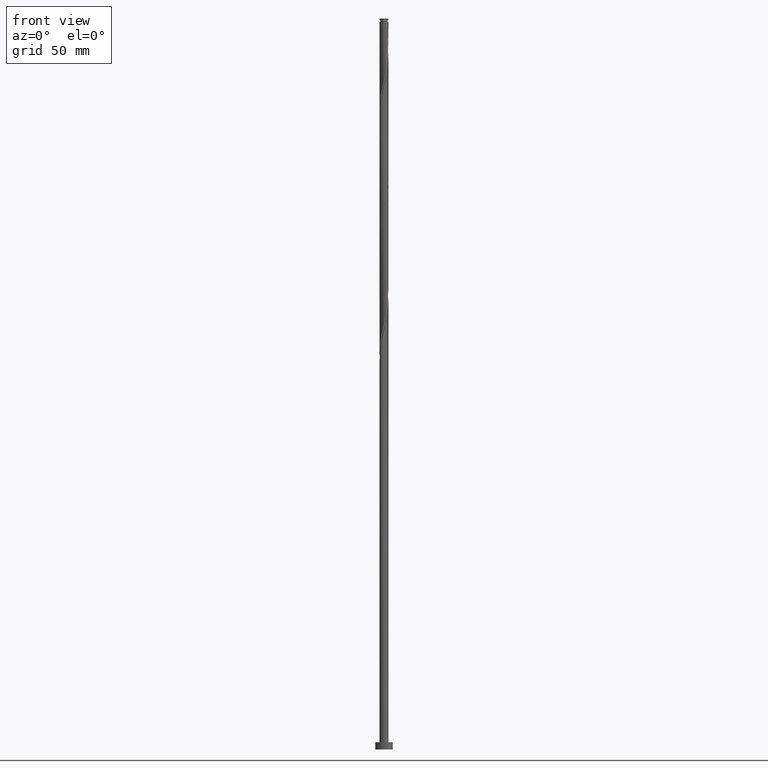
[diagram: clean part render]
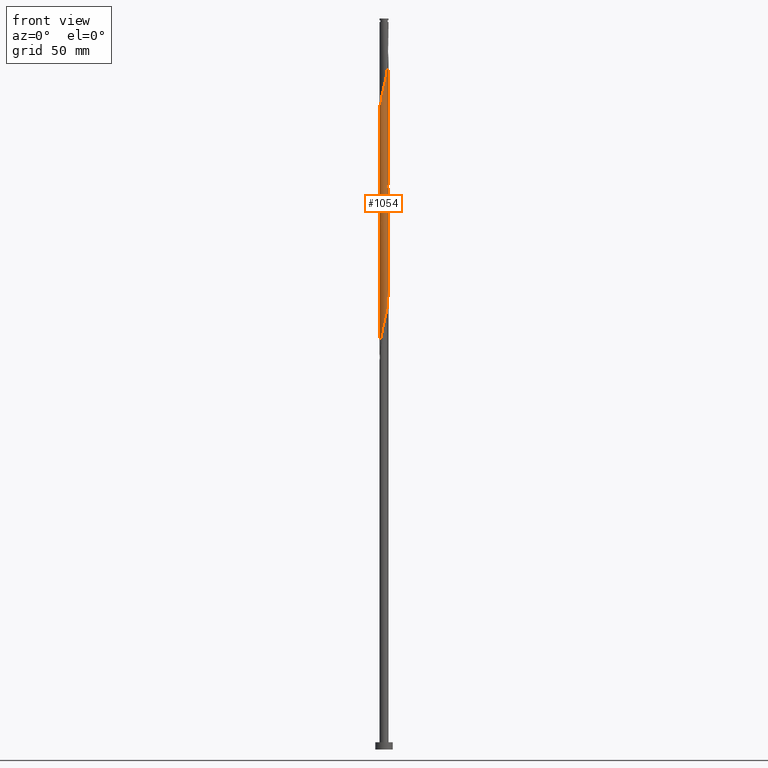
[diagram: same view with one face highlighted and labeled with its STEP entity id]
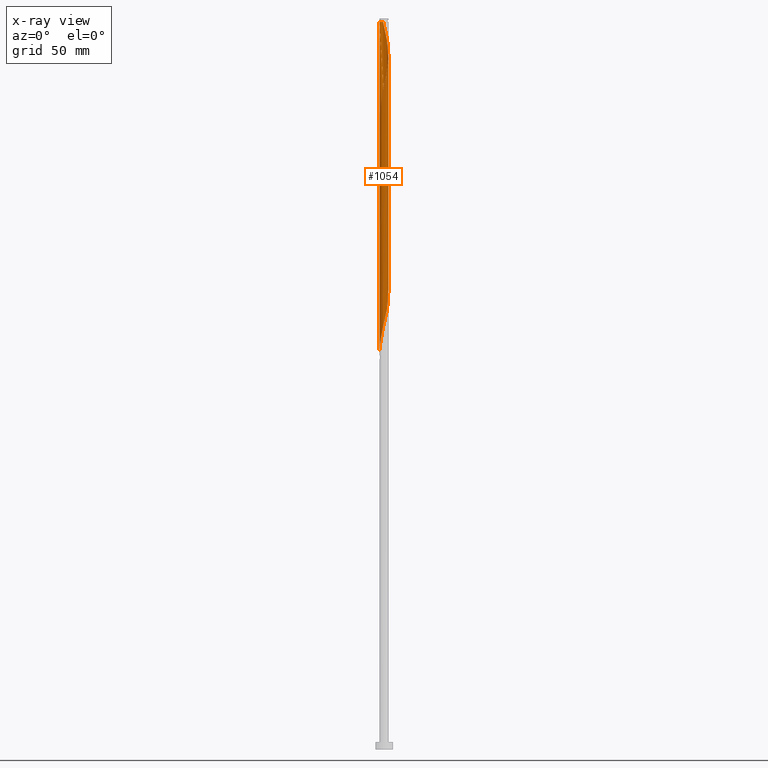
[diagram: x-ray of the same camera — body ghosted, the highlighted face saturated]
A machine part, front view. The second image highlights one B-rep face of the part: STEP entity #1054.
The next image is the same camera in x-ray: the body ghosted, the highlighted face saturated — about 0% of this face is hidden behind the body in this view.
In plain terms, the highlighted cylindrical surface (bore or boss wall) has radius 3.1 mm, axis along (-0, -0, -1).
Its self-contained STEP definition (entity closure, byte-faithful):
#4 = CARTESIAN_POINT ( 'NONE',  ( -1.174895240395842144, 2.868731631591772580, 422.0428480774244804 ) ) ;
#16 = CARTESIAN_POINT ( 'NONE',  ( -1.985715407613428907, -2.400032639001084878, 282.7199314107576811 ) ) ;
#27 = CARTESIAN_POINT ( 'NONE',  ( 1.711981735581152186, 2.584399066908315667, 487.1470147440909955 ) ) ;
#50 = CARTESIAN_POINT ( 'NONE',  ( -3.098758579582098438, -0.3176753276070431453, 433.7615980774244235 ) ) ;
#61 = CARTESIAN_POINT ( 'NONE',  ( -2.183277732758493350, -2.200749495431261415, 442.8761814107575674 ) ) ;
#71 = CARTESIAN_POINT ( 'NONE',  ( 2.741310543123280485, 1.479337302465212112, 480.6365980774243098 ) ) ;
#74 = CARTESIAN_POINT ( 'NONE',  ( 1.457440644646402550, -2.753014550567534524, 381.6782647440910523 ) ) ;
#82 = AXIS2_PLACEMENT_3D ( 'NONE', #1129, #700, #1417 ) ;
#93 = CARTESIAN_POINT ( 'NONE',  ( 0.6168922110061095809, 3.038000000000000256, 330.8970147440911092 ) ) ;
#100 = CARTESIAN_POINT ( 'NONE',  ( 3.042820448476395434, 0.5926581800109657072, 315.2720147440911092 ) ) ;
#104 = VERTEX_POINT ( 'NONE', #1364 ) ;
#108 = CARTESIAN_POINT ( 'NONE',  ( -1.457440644646403882, 2.753014550567534524, 340.0115980774244235 ) ) ;
#114 = EDGE_CURVE ( 'NONE', #104, #734, #482, .T. ) ;
#118 = CARTESIAN_POINT ( 'NONE',  ( 1.479337302465212778, 2.741310543123277377, 326.9907647440909386 ) ) ;
#124 = EDGE_LOOP ( 'NONE', ( #1191, #250, #993, #1122, #819, #1780, #1325, #1739 ) ) ;
#129 = CARTESIAN_POINT ( 'NONE',  ( 2.741310543123277377, -1.479337302465212778, 306.1574314107577379 ) ) ;
#156 = CARTESIAN_POINT ( 'NONE',  ( -2.868731631591773912, -1.174895240395841478, 276.2095147440910523 ) ) ;
#165 = CARTESIAN_POINT ( 'NONE',  ( -2.859275981770590835, 1.197723198435192815, 432.4595147440910523 ) ) ;
#202 = CARTESIAN_POINT ( 'NONE',  ( -0.3176753276070397591, 3.098758579582098882, 496.2615980774243098 ) ) ;
#211 = CARTESIAN_POINT ( 'NONE',  ( 2.415783583249093702, -1.966522826515897382, 465.0115980774243098 ) ) ;
#223 = CARTESIAN_POINT ( 'NONE',  ( -3.100000000000003642, -0.006177225460204290204, 432.4331713206115637 ) ) ;
#235 = CARTESIAN_POINT ( 'NONE',  ( -2.400032639001089318, -1.985715407613431127, 441.5740980774243098 ) ) ;
#243 = CARTESIAN_POINT ( 'NONE',  ( 2.570671591062184458, 1.732526355039322619, 481.9386814107577379 ) ) ;
#250 = ORIENTED_EDGE ( 'NONE', *, *, #1414, .T. ) ;
#254 = CARTESIAN_POINT ( 'NONE',  ( -2.200749495431260971, -2.183277732758491574, 364.7511814107577379 ) ) ;
#262 = CARTESIAN_POINT ( 'NONE',  ( 2.200749495431260971, 2.183277732758491130, 323.0845147440909955 ) ) ;
#269 = CARTESIAN_POINT ( 'NONE',  ( -0.3176753276070437559, -3.098758579582094885, 373.8657647440911092 ) ) ;
#276 = CARTESIAN_POINT ( 'NONE',  ( 2.183277732758491130, -2.200749495431260971, 302.2511814107577948 ) ) ;
#285 = CARTESIAN_POINT ( 'NONE',  ( -1.711981735581149078, 2.584399066908313447, 424.6470147440911660 ) ) ;
#286 = CARTESIAN_POINT ( 'NONE',  ( -0.01235440186519720825, -3.099975381959436671, 291.8345147440911092 ) ) ;
#294 = CARTESIAN_POINT ( 'NONE',  ( -0.8923498361452809613, 2.984448712616012411, 420.7407647440910523 ) ) ;
#315 = CARTESIAN_POINT ( 'NONE',  ( -3.098758579582094885, 0.3176753276070435894, 436.3657647440909955 ) ) ;
#316 = CARTESIAN_POINT ( 'NONE',  ( -0.9161090944051740736, -2.977241420417903406, 287.9282647440910523 ) ) ;
#319 = DIRECTION ( 'NONE',  ( -0.000000000000000000, -0.000000000000000000, -1.000000000000000000 ) ) ;
#353 = CARTESIAN_POINT ( 'NONE',  ( 0.5926581800109677056, 3.042820448476398099, 492.3553480774243098 ) ) ;
#356 = CARTESIAN_POINT ( 'NONE',  ( 2.741310543123277377, -1.479337302465212778, 389.4907647440911092 ) ) ;
#364 = CARTESIAN_POINT ( 'NONE',  ( -3.099975381959439780, -0.01235440186519696018, 432.4595147440911092 ) ) ;
#367 = CARTESIAN_POINT ( 'NONE',  ( 3.098758579582094885, -0.3176753276070453103, 394.6990980774243667 ) ) ;
#376 = CARTESIAN_POINT ( 'NONE',  ( 2.200749495431261415, -2.183277732758494238, 463.7095147440909955 ) ) ;
#382 = CARTESIAN_POINT ( 'NONE',  ( -3.100000000000004086, 1.339161813458410899E-15, 432.4068177660942638 ) ) ;
#386 = CARTESIAN_POINT ( 'NONE',  ( 1.985715407613431127, -2.400032639001089318, 462.4074314107576811 ) ) ;
#394 = CARTESIAN_POINT ( 'NONE',  ( 0.9161090944051741847, -2.977241420417907403, 457.1990980774243098 ) ) ;
#405 = CARTESIAN_POINT ( 'NONE',  ( -0.5926581800109649301, 3.042820448476395878, 336.1053480774243098 ) ) ;
#411 = VECTOR ( 'NONE', #319, 1000.000000000000000 ) ;
#414 = CARTESIAN_POINT ( 'NONE',  ( -0.9161090944051740736, -2.977241420417903406, 371.2615980774244235 ) ) ;
#420 = CARTESIAN_POINT ( 'NONE',  ( 3.099975381959436671, -0.01235440186519741988, 312.6678480774243098 ) ) ;
#427 = CARTESIAN_POINT ( 'NONE',  ( 0.9161090944051734075, 2.977241420417903850, 329.5949314107576242 ) ) ;
#433 = CARTESIAN_POINT ( 'NONE',  ( 0.5926581800109645970, -3.042820448476395878, 294.4386814107577948 ) ) ;
#453 = CARTESIAN_POINT ( 'NONE',  ( -1.457440644646403882, 2.753014550567534524, 423.3449314107576811 ) ) ;
#463 = CARTESIAN_POINT ( 'NONE',  ( 0.01235440186519763152, 3.099975381959436671, 416.8345147440910523 ) ) ;
#465 = CARTESIAN_POINT ( 'NONE',  ( -0.3176753276070437559, -3.098758579582094885, 290.5324314107576811 ) ) ;
#476 = CARTESIAN_POINT ( 'NONE',  ( -3.038000000000000256, 0.6168922110061089148, 435.0636814107577379 ) ) ;
#482 = LINE ( 'NONE', #757, #609 ) ;
#485 = CARTESIAN_POINT ( 'NONE',  ( 2.584399066908314335, 1.711981735581148856, 403.8136814107577379 ) ) ;
#498 = CARTESIAN_POINT ( 'NONE',  ( -0.2929665238766494539, -3.101192184336781565, 451.9907647440909386 ) ) ;
#503 = CIRCLE ( 'NONE', #539, 3.099999999999951239 ) ;
#516 = CARTESIAN_POINT ( 'NONE',  ( 3.100000000000000533, 8.396553889533993658E-16, 396.0538783887545833 ) ) ;
#524 = CARTESIAN_POINT ( 'NONE',  ( -1.966522826515897382, -2.415783583249094146, 444.1782647440909955 ) ) ;
#532 = DIRECTION ( 'NONE',  ( -1.000000000000000000, 0.000000000000000000, 0.000000000000000000 ) ) ;
#535 = CARTESIAN_POINT ( 'NONE',  ( 2.183277732758491130, -2.200749495431260971, 385.5845147440910523 ) ) ;
#539 = AXIS2_PLACEMENT_3D ( 'NONE', #667, #996, #532 ) ;
#543 = CARTESIAN_POINT ( 'NONE',  ( 2.400032639001089318, 1.985715407613430683, 483.2407647440910523 ) ) ;
#546 = CARTESIAN_POINT ( 'NONE',  ( 0.8923498361452809613, -2.984448712616012411, 379.0740980774242530 ) ) ;
#550 = VERTEX_POINT ( 'NONE', #382 ) ;
#553 = CARTESIAN_POINT ( 'NONE',  ( -0.6168922110061091368, -3.038000000000000256, 372.5636814107577379 ) ) ;
#560 = CARTESIAN_POINT ( 'NONE',  ( 2.415783583249093258, 1.966522826515892719, 321.7824314107577948 ) ) ;
#569 = CARTESIAN_POINT ( 'NONE',  ( -1.174895240395842144, 2.868731631591772580, 338.7095147440910523 ) ) ;
#578 = CARTESIAN_POINT ( 'NONE',  ( 2.984448712616012411, 0.8923498361452806282, 316.5740980774244235 ) ) ;
#584 = CARTESIAN_POINT ( 'NONE',  ( -2.183277732758490686, 2.200749495431261415, 343.9178480774244235 ) ) ;
#602 =( BOUNDED_CURVE ( )  B_SPLINE_CURVE ( 2, ( #1687, #1202, #914, #315, #476, #612, #165, #925, #1083, #1534, #1212, #1827, #285, #453, #4, #294, #1345, #773, #463, #1497, #1837, #1521, #1378, #622, #1225, #1697, #1056, #894, #485, #1391, #939, #1093, #1355, #1813, #1675 ),
 .UNSPECIFIED., .F., .T. ) 
 B_SPLINE_CURVE_WITH_KNOTS ( ( 3, 2, 2, 2, 2, 2, 2, 2, 2, 2, 2, 2, 2, 2, 2, 2, 2, 3 ),
 ( 0.4295286902180872057, 0.4296875000000000000, 0.4375000000000000000, 0.4453125000000000000, 0.4531250000000000000, 0.4609375000000000000, 0.4687500000000000000, 0.4765625000000000000, 0.4843750000000000000, 0.4921875000000000000, 0.5000000000000000000, 0.5078125000000000000, 0.5156250000000000000, 0.5234375000000000000, 0.5312500000000000000, 0.5390625000000000000, 0.5468750000000000000, 0.5545286902180873723 ),
 .UNSPECIFIED. ) 
 CURVE ( )  GEOMETRIC_REPRESENTATION_ITEM ( )  RATIONAL_B_SPLINE_CURVE ( ( 0.9089165573359772043, 0.9090019243628819634, 0.9090909090909737866, 0.9047133878838798937, 0.9090909090909737866, 0.9047133878838798937, 0.9090909090909737866, 0.9047133878838798937, 0.9090909090909737866, 0.9047133878838798937, 0.9090909090909737866, 0.9047133878838798937, 0.9090909090909737866, 0.9047133878838798937, 0.9090909090909737866, 0.9047133878838798937, 0.9090909090909737866, 0.9047133878838798937, 0.9090909090909737866, 0.9047133878838798937, 0.9090909090909737866, 0.9047133878838798937, 0.9090909090909737866, 0.9047133878838798937, 0.9090909090909737866, 0.9047133878838798937, 0.9090909090909737866, 0.9047133878838798937, 0.9090909090909737866, 0.9047133878838798937, 0.9090909090909737866, 0.9047133878838798937, 0.9090909090909737866, 0.9048023726119716059, 0.9089165573359774264 ) ) 
 REPRESENTATION_ITEM ( '' )  );
#609 = VECTOR ( 'NONE', #1245, 1000.000000000000000 ) ;
#612 = CARTESIAN_POINT ( 'NONE',  ( -2.977241420417903406, 0.9161090944051740736, 433.7615980774243667 ) ) ;
#622 = CARTESIAN_POINT ( 'NONE',  ( 1.479337302465212778, 2.741310543123277377, 410.3240980774243667 ) ) ;
#645 = CARTESIAN_POINT ( 'NONE',  ( 0.6168922110061085817, -3.038000000000003364, 455.8970147440909386 ) ) ;
#654 = CARTESIAN_POINT ( 'NONE',  ( 0.2929665238766498425, 3.101192184336781565, 493.6574314107576242 ) ) ;
#667 = CARTESIAN_POINT ( 'NONE',  ( 0.000000000000000000, 0.000000000000000000, 497.5636814107576811 ) ) ;
#675 = CARTESIAN_POINT ( 'NONE',  ( 0.01235440186519611190, -3.099975381959440668, 453.2928480774244235 ) ) ;
#678 = CARTESIAN_POINT ( 'NONE',  ( 2.400032639001084878, -1.985715407613429795, 386.8865980774244804 ) ) ;
#687 = CARTESIAN_POINT ( 'NONE',  ( 2.183277732758494238, 2.200749495431261415, 484.5428480774244235 ) ) ;
#700 = DIRECTION ( 'NONE',  ( -0.000000000000000000, -0.000000000000000000, -1.000000000000000000 ) ) ;
#708 = EDGE_CURVE ( 'NONE', #550, #1621, #1109, .T. ) ;
#709 = CARTESIAN_POINT ( 'NONE',  ( 2.753014550567534524, 1.457440644646403882, 319.1782647440911092 ) ) ;
#714 = CARTESIAN_POINT ( 'NONE',  ( 2.400032639001084878, -1.985715407613429795, 303.5532647440911092 ) ) ;
#723 = CARTESIAN_POINT ( 'NONE',  ( 2.570671591062181349, -1.732526355039322175, 304.8553480774244235 ) ) ;
#729 = CARTESIAN_POINT ( 'NONE',  ( 1.174895240395841478, -2.868731631591774356, 297.0428480774243667 ) ) ;
#734 = VERTEX_POINT ( 'NONE', #826 ) ;
#739 = CARTESIAN_POINT ( 'NONE',  ( -3.038000000000000256, 0.6168922110061089148, 351.7303480774243667 ) ) ;
#757 = CARTESIAN_POINT ( 'NONE',  ( -3.100000000000000089, 0.000000000000000000, 500.0000000000000000 ) ) ;
#773 = CARTESIAN_POINT ( 'NONE',  ( -0.2929665238766484547, 3.101192184336778901, 418.1365980774243098 ) ) ;
#786 = CARTESIAN_POINT ( 'NONE',  ( -2.200749495431260971, -2.183277732758491574, 281.4178480774244235 ) ) ;
#810 = CARTESIAN_POINT ( 'NONE',  ( -0.6168922110061740849, 3.038000000000828926, 497.5636814107575105 ) ) ;
#819 = ORIENTED_EDGE ( 'NONE', *, *, #1357, .F. ) ;
#821 = CARTESIAN_POINT ( 'NONE',  ( 2.584399066908316556, -1.711981735581152186, 466.3136814107577379 ) ) ;
#823 = CARTESIAN_POINT ( 'NONE',  ( -0.01235440186519720825, -3.099975381959436671, 375.1678480774244235 ) ) ;
#826 = CARTESIAN_POINT ( 'NONE',  ( -3.100000000000000533, -5.461021730595916398E-16, 437.7205450554212689 ) ) ;
#831 = CARTESIAN_POINT ( 'NONE',  ( -3.038000000000003364, -0.6168922110061088038, 435.0636814107576811 ) ) ;
#844 = CARTESIAN_POINT ( 'NONE',  ( 3.098758579582098882, 0.3176753276070441445, 475.4282647440909386 ) ) ;
#847 = CARTESIAN_POINT ( 'NONE',  ( 2.859275981770590391, -1.197723198435193925, 390.7928480774244235 ) ) ;
#862 = CARTESIAN_POINT ( 'NONE',  ( -3.100000000000000533, -5.461021730595916398E-16, 271.0538783887545833 ) ) ;
#864 = CARTESIAN_POINT ( 'NONE',  ( -2.400032639001084878, 1.985715407613428907, 345.2199314107576811 ) ) ;
#870 = CARTESIAN_POINT ( 'NONE',  ( -1.732526355039320842, -2.570671591062182237, 367.3553480774243667 ) ) ;
#876 = CARTESIAN_POINT ( 'NONE',  ( -1.479337302465211890, -2.741310543123277377, 368.6574314107577948 ) ) ;
#885 = CARTESIAN_POINT ( 'NONE',  ( -2.415783583249092814, -1.966522826515894495, 363.4490980774243098 ) ) ;
#894 = CARTESIAN_POINT ( 'NONE',  ( 2.415783583249093258, 1.966522826515892719, 405.1157647440910523 ) ) ;
#895 = CARTESIAN_POINT ( 'NONE',  ( 1.197723198435193925, 2.859275981770590391, 328.2928480774244235 ) ) ;
#904 = CARTESIAN_POINT ( 'NONE',  ( -1.479337302465211890, -2.741310543123277377, 285.3240980774243098 ) ) ;
#914 = CARTESIAN_POINT ( 'NONE',  ( -3.099975381959436671, 0.01235440186519773734, 437.6678480774244235 ) ) ;
#925 = CARTESIAN_POINT ( 'NONE',  ( -2.741310543123277377, 1.479337302465211890, 431.1574314107575674 ) ) ;
#939 = CARTESIAN_POINT ( 'NONE',  ( 2.868731631591774356, 1.174895240395840812, 401.2095147440910523 ) ) ;
#959 = CARTESIAN_POINT ( 'NONE',  ( -0.01235440186519578751, 3.099975381959440668, 494.9595147440909386 ) ) ;
#962 = CARTESIAN_POINT ( 'NONE',  ( -0.6168922110061740849, 3.038000000000828926, 497.5636814107575105 ) ) ;
#970 = CARTESIAN_POINT ( 'NONE',  ( 2.977241420417908291, 0.9161090944051727414, 478.0324314107576811 ) ) ;
#977 = CARTESIAN_POINT ( 'NONE',  ( 2.868731631591776576, -1.174895240395844365, 468.9178480774243667 ) ) ;
#980 = CARTESIAN_POINT ( 'NONE',  ( 3.099975381959436671, -0.01235440186519741988, 396.0011814107576811 ) ) ;
#987 = CARTESIAN_POINT ( 'NONE',  ( 2.753014550567536300, -1.457440644646406991, 467.6157647440911092 ) ) ;
#989 = FACE_OUTER_BOUND ( 'NONE', #124, .T. ) ;
#993 = ORIENTED_EDGE ( 'NONE', *, *, #1452, .F. ) ;
#996 = DIRECTION ( 'NONE',  ( -0.000000000000000000, -0.000000000000000000, -1.000000000000000000 ) ) ;
#999 = CARTESIAN_POINT ( 'NONE',  ( 0.5926581800109645970, -3.042820448476395878, 377.7720147440911660 ) ) ;
#1006 = CARTESIAN_POINT ( 'NONE',  ( 1.732526355039322175, 2.570671591062181349, 325.6886814107577379 ) ) ;
#1010 = EDGE_CURVE ( 'NONE', #1493, #1279, #1372, .T. ) ;
#1014 = CARTESIAN_POINT ( 'NONE',  ( -1.966522826515894495, 2.415783583249092370, 342.6157647440909955 ) ) ;
#1022 = CARTESIAN_POINT ( 'NONE',  ( 2.859275981770590391, -1.197723198435193925, 307.4595147440910523 ) ) ;
#1030 = CARTESIAN_POINT ( 'NONE',  ( 1.985715407613430239, 2.400032639001084878, 324.3865980774243667 ) ) ;
#1038 = CARTESIAN_POINT ( 'NONE',  ( 0.2929665238766477886, -3.101192184336778901, 293.1365980774244235 ) ) ;
#1054 = ADVANCED_FACE ( 'NONE', ( #989 ), #1263, .T. ) ;
#1056 = CARTESIAN_POINT ( 'NONE',  ( 2.200749495431260971, 2.183277732758491130, 406.4178480774243667 ) ) ;
#1059 = CARTESIAN_POINT ( 'NONE',  ( -3.100000000000000977, -0.2990874262798418060, 272.3298584941705940 ) ) ;
#1083 = CARTESIAN_POINT ( 'NONE',  ( -2.570671591062182237, 1.732526355039320620, 429.8553480774243667 ) ) ;
#1093 = CARTESIAN_POINT ( 'NONE',  ( 2.984448712616012411, 0.8923498361452806282, 399.9074314107577379 ) ) ;
#1094 = CARTESIAN_POINT ( 'NONE',  ( -1.732526355039320842, -2.570671591062182237, 284.0220147440911092 ) ) ;
#1103 = CARTESIAN_POINT ( 'NONE',  ( 0.8923498361452831817, 2.984448712616015520, 491.0532647440910523 ) ) ;
#1109 = LINE ( 'NONE', #1722, #1961 ) ;
#1122 = ORIENTED_EDGE ( 'NONE', *, *, #708, .T. ) ;
#1126 = CARTESIAN_POINT ( 'NONE',  ( -1.711981735581151520, -2.584399066908316556, 445.4803480774243098 ) ) ;
#1129 = CARTESIAN_POINT ( 'NONE',  ( 0.000000000000000000, 0.000000000000000000, 500.0000000000000000 ) ) ;
#1137 = CARTESIAN_POINT ( 'NONE',  ( -0.8923498361452827377, -2.984448712616015520, 449.3865980774243098 ) ) ;
#1146 = CARTESIAN_POINT ( 'NONE',  ( 1.966522826515896938, 2.415783583249094146, 485.8449314107575105 ) ) ;
#1154 = CARTESIAN_POINT ( 'NONE',  ( -3.098758579582094885, 0.3176753276070435894, 353.0324314107576242 ) ) ;
#1162 = CARTESIAN_POINT ( 'NONE',  ( 3.101192184336778901, 0.2929665238766476776, 313.9699314107576811 ) ) ;
#1170 = CARTESIAN_POINT ( 'NONE',  ( -2.753014550567534968, -1.457440644646403216, 360.8449314107576811 ) ) ;
#1178 = CARTESIAN_POINT ( 'NONE',  ( 1.457440644646402550, -2.753014550567534524, 298.3449314107575674 ) ) ;
#1186 = CARTESIAN_POINT ( 'NONE',  ( 3.038000000000000256, -0.6168922110061093589, 310.0636814107576242 ) ) ;
#1191 = ORIENTED_EDGE ( 'NONE', *, *, #114, .F. ) ;
#1202 = CARTESIAN_POINT ( 'NONE',  ( -3.100000000000000977, 0.006177225460211554359, 437.6941915009039690 ) ) ;
#1212 = CARTESIAN_POINT ( 'NONE',  ( -2.183277732758490686, 2.200749495431261415, 427.2511814107577948 ) ) ;
#1225 = CARTESIAN_POINT ( 'NONE',  ( 1.732526355039322175, 2.570671591062181349, 409.0220147440912228 ) ) ;
#1245 = DIRECTION ( 'NONE',  ( -0.000000000000000000, -0.000000000000000000, -1.000000000000000000 ) ) ;
#1249 = CARTESIAN_POINT ( 'NONE',  ( 1.457440644646406991, 2.753014550567536300, 488.4490980774244235 ) ) ;
#1263 = CYLINDRICAL_SURFACE ( 'NONE', #82, 3.100000000000000089 ) ;
#1272 = CARTESIAN_POINT ( 'NONE',  ( 1.197723198435193703, -2.859275981770593944, 458.5011814107576242 ) ) ;
#1279 = VERTEX_POINT ( 'NONE', #1877 ) ;
#1281 = CARTESIAN_POINT ( 'NONE',  ( -2.741310543123280485, -1.479337302465212334, 438.9699314107576811 ) ) ;
#1289 = CARTESIAN_POINT ( 'NONE',  ( 2.859275981770593944, 1.197723198435193703, 479.3345147440909955 ) ) ;
#1292 = CARTESIAN_POINT ( 'NONE',  ( 1.711981735581149078, -2.584399066908314335, 382.9803480774243098 ) ) ;
#1314 = CARTESIAN_POINT ( 'NONE',  ( 2.868731631591774356, 1.174895240395840812, 317.8761814107577948 ) ) ;
#1317 = VERTEX_POINT ( 'NONE', #962 ) ;
#1319 = CARTESIAN_POINT ( 'NONE',  ( -3.099975381959436671, 0.01235440186519773734, 354.3345147440910523 ) ) ;
#1325 = ORIENTED_EDGE ( 'NONE', *, *, #1010, .T. ) ;
#1329 = CARTESIAN_POINT ( 'NONE',  ( -2.868731631591773912, -1.174895240395841478, 359.5428480774243667 ) ) ;
#1339 = CARTESIAN_POINT ( 'NONE',  ( 0.8923498361452809613, -2.984448712616012411, 295.7407647440910523 ) ) ;
#1345 = CARTESIAN_POINT ( 'NONE',  ( -0.5926581800109649301, 3.042820448476395878, 419.4386814107577379 ) ) ;
#1346 = CARTESIAN_POINT ( 'NONE',  ( -2.741310543123277377, 1.479337302465211890, 347.8240980774243667 ) ) ;
#1355 = CARTESIAN_POINT ( 'NONE',  ( 3.042820448476395434, 0.5926581800109657072, 398.6053480774243667 ) ) ;
#1357 = EDGE_CURVE ( 'NONE', #1279, #1621, #1566, .T. ) ;
#1364 = CARTESIAN_POINT ( 'NONE',  ( -3.099999999999951239, 0.000000000000000000, 497.5636814107576811 ) ) ;
#1372 = LINE ( 'NONE', #1982, #411 ) ;
#1378 = CARTESIAN_POINT ( 'NONE',  ( 1.197723198435193925, 2.859275981770590391, 411.6261814107577948 ) ) ;
#1391 = CARTESIAN_POINT ( 'NONE',  ( 2.753014550567534524, 1.457440644646403882, 402.5115980774243667 ) ) ;
#1394 = CARTESIAN_POINT ( 'NONE',  ( -3.042820448476395878, -0.5926581800109649301, 273.6053480774243098 ) ) ;
#1404 = CARTESIAN_POINT ( 'NONE',  ( -1.457440644646405437, -2.753014550567536745, 446.7824314107576811 ) ) ;
#1412 = CARTESIAN_POINT ( 'NONE',  ( -0.5926581800109662623, -3.042820448476398987, 450.6886814107576811 ) ) ;
#1414 = EDGE_CURVE ( 'NONE', #104, #1317, #503, .T. ) ;
#1417 = DIRECTION ( 'NONE',  ( -1.000000000000000000, 0.000000000000000000, 0.000000000000000000 ) ) ;
#1420 = DIRECTION ( 'NONE',  ( -0.000000000000000000, -0.000000000000000000, -1.000000000000000000 ) ) ;
#1435 = CARTESIAN_POINT ( 'NONE',  ( -2.570671591062184902, -1.732526355039321508, 440.2720147440911092 ) ) ;
#1445 = CARTESIAN_POINT ( 'NONE',  ( 3.038000000000003364, 0.6168922110061085817, 476.7303480774244804 ) ) ;
#1448 = CARTESIAN_POINT ( 'NONE',  ( 1.966522826515893607, -2.415783583249093258, 384.2824314107576811 ) ) ;
#1452 = EDGE_CURVE ( 'NONE', #550, #1317, #1978, .T. ) ;
#1466 = CARTESIAN_POINT ( 'NONE',  ( -0.2929665238766484547, 3.101192184336778901, 334.8032647440911092 ) ) ;
#1473 = CARTESIAN_POINT ( 'NONE',  ( 2.584399066908314335, 1.711981735581148856, 320.4803480774243098 ) ) ;
#1479 = CARTESIAN_POINT ( 'NONE',  ( -2.859275981770590835, 1.197723198435192815, 349.1261814107577379 ) ) ;
#1487 = CARTESIAN_POINT ( 'NONE',  ( -2.984448712616012411, -0.8923498361452810723, 358.2407647440910523 ) ) ;
#1493 = VERTEX_POINT ( 'NONE', #1874 ) ;
#1497 = CARTESIAN_POINT ( 'NONE',  ( 0.3176753276070437559, 3.098758579582094885, 415.5324314107577379 ) ) ;
#1498 = CARTESIAN_POINT ( 'NONE',  ( -2.584399066908313447, -1.711981735581149078, 362.1470147440911660 ) ) ;
#1521 = CARTESIAN_POINT ( 'NONE',  ( 0.9161090944051734075, 2.977241420417903850, 412.9282647440910523 ) ) ;
#1523 = CARTESIAN_POINT ( 'NONE',  ( -2.753014550567534968, -1.457440644646403216, 277.5115980774243667 ) ) ;
#1534 = CARTESIAN_POINT ( 'NONE',  ( -2.400032639001084878, 1.985715407613428907, 428.5532647440910523 ) ) ;
#1537 = CARTESIAN_POINT ( 'NONE',  ( -2.415783583249092814, -1.966522826515894495, 280.1157647440911092 ) ) ;
#1566 =( BOUNDED_CURVE ( )  B_SPLINE_CURVE ( 2, ( #516, #1761, #980, #367, #1720, #1884, #847, #356, #1896, #678, #535, #1448, #1292, #74, #1907, #546, #999, #1577, #823, #269, #553, #414, #1626, #876, #870, #1949, #254, #885, #1498, #1170, #1329, #1487, #1790, #1782, #1319, #1154, #739, #1659, #1479, #1346, #1634, #864, #584, #1014, #1767, #108, #569, #1774, #405, #1466, #1939, #1923, #93, #427, #895, #118, #1006, #1030, #262, #560, #1473, #709, #1314, #578, #100, #1162, #420, #1649, #1186, #1931, #1022, #129, #723, #714, #276, #1642, #1798, #1178, #729, #1339, #433, #1038, #286, #465, #1829, #316, #1968, #904, #1094, #16, #786, #1537, #1979, #1523, #156, #1840, #1394, #1059, #1850 ),
 .UNSPECIFIED., .F., .T. ) 
 B_SPLINE_CURVE_WITH_KNOTS ( ( 3, 2, 2, 2, 2, 2, 2, 2, 2, 2, 2, 2, 2, 2, 2, 2, 2, 2, 2, 2, 2, 2, 2, 2, 2, 2, 2, 2, 2, 2, 2, 2, 2, 2, 2, 2, 2, 2, 2, 2, 2, 2, 2, 2, 2, 2, 2, 2, 2, 3 ),
 ( 0.5545286902180873723, 0.5546875000000000000, 0.5625000000000000000, 0.5703125000000000000, 0.5781250000000000000, 0.5859375000000000000, 0.5937500000000000000, 0.6015625000000000000, 0.6093750000000000000, 0.6171875000000000000, 0.6250000000000000000, 0.6328125000000000000, 0.6406250000000000000, 0.6484375000000000000, 0.6562500000000000000, 0.6640625000000000000, 0.6718750000000000000, 0.6796875000000000000, 0.6875000000000000000, 0.6953125000000000000, 0.7031250000000000000, 0.7109375000000000000, 0.7187500000000000000, 0.7265625000000000000, 0.7343750000000000000, 0.7421875000000000000, 0.7500000000000000000, 0.7578125000000000000, 0.7656250000000000000, 0.7734375000000000000, 0.7812500000000000000, 0.7890625000000000000, 0.7968750000000000000, 0.8046875000000000000, 0.8125000000000000000, 0.8203125000000000000, 0.8281250000000000000, 0.8359375000000000000, 0.8437500000000000000, 0.8515625000000000000, 0.8593750000000000000, 0.8671875000000000000, 0.8750000000000000000, 0.8828125000000000000, 0.8906250000000000000, 0.8984375000000000000, 0.9062500000000000000, 0.9140625000000000000, 0.9218750000000000000, 0.9295286902180871502 ),
 .UNSPECIFIED. ) 
 CURVE ( )  GEOMETRIC_REPRESENTATION_ITEM ( )  RATIONAL_B_SPLINE_CURVE ( ( 0.9089165573359774264, 0.9090019243628820744, 0.9090909090909737866, 0.9047133878838798937, 0.9090909090909737866, 0.9047133878838798937, 0.9090909090909737866, 0.9047133878838798937, 0.9090909090909737866, 0.9047133878838798937, 0.9090909090909737866, 0.9047133878838798937, 0.9090909090909737866, 0.9047133878838798937, 0.9090909090909737866, 0.9047133878838798937, 0.9090909090909737866, 0.9047133878838798937, 0.9090909090909737866, 0.9047133878838798937, 0.9090909090909737866, 0.9047133878838798937, 0.9090909090909737866, 0.9047133878838798937, 0.9090909090909737866, 0.9047133878838798937, 0.9090909090909737866, 0.9047133878838798937, 0.9090909090909737866, 0.9047133878838798937, 0.9090909090909737866, 0.9047133878838798937, 0.9090909090909737866, 0.9047133878838798937, 0.9090909090909737866, 0.9047133878838798937, 0.9090909090909737866, 0.9047133878838798937, 0.9090909090909737866, 0.9047133878838798937, 0.9090909090909737866, 0.9047133878838798937, 0.9090909090909737866, 0.9047133878838798937, 0.9090909090909737866, 0.9047133878838798937, 0.9090909090909737866, 0.9047133878838798937, 0.9090909090909737866, 0.9047133878838798937, 0.9090909090909737866, 0.9047133878838798937, 0.9090909090909737866, 0.9047133878838798937, 0.9090909090909737866, 0.9047133878838798937, 0.9090909090909737866, 0.9047133878838798937, 0.9090909090909737866, 0.9047133878838798937, 0.9090909090909737866, 0.9047133878838798937, 0.9090909090909737866, 0.9047133878838798937, 0.9090909090909737866, 0.9047133878838798937, 0.9090909090909737866, 0.9047133878838798937, 0.9090909090909737866, 0.9047133878838798937, 0.9090909090909737866, 0.9047133878838798937, 0.9090909090909737866, 0.9047133878838798937, 0.9090909090909737866, 0.9047133878838798937, 0.9090909090909737866, 0.9047133878838798937, 0.9090909090909737866, 0.9047133878838798937, 0.9090909090909737866, 0.9047133878838798937, 0.9090909090909737866, 0.9047133878838798937, 0.9090909090909737866, 0.9047133878838798937, 0.9090909090909737866, 0.9047133878838798937, 0.9090909090909737866, 0.9047133878838798937, 0.9090909090909737866, 0.9047133878838798937, 0.9090909090909737866, 0.9047133878838798937, 0.9090909090909737866, 0.9047133878838798937, 0.9090909090909737866, 0.9048023726119717169, 0.9089165573359770933 ) ) 
 REPRESENTATION_ITEM ( '' )  );
#1573 = CARTESIAN_POINT ( 'NONE',  ( 2.984448712616015520, -0.8923498361452829597, 470.2199314107576811 ) ) ;
#1577 = CARTESIAN_POINT ( 'NONE',  ( 0.2929665238766477886, -3.101192184336778901, 376.4699314107577379 ) ) ;
#1586 = CARTESIAN_POINT ( 'NONE',  ( -1.174895240395844365, -2.868731631591776576, 448.0845147440910523 ) ) ;
#1592 = CARTESIAN_POINT ( 'NONE',  ( 3.042820448476398099, -0.5926581800109674836, 471.5220147440909955 ) ) ;
#1603 = CARTESIAN_POINT ( 'NONE',  ( -2.977241420417907403, -0.9161090944051745177, 436.3657647440911092 ) ) ;
#1615 = CARTESIAN_POINT ( 'NONE',  ( 3.101192184336781565, -0.2929665238766496760, 472.8240980774244235 ) ) ;
#1621 = VERTEX_POINT ( 'NONE', #862 ) ;
#1626 = CARTESIAN_POINT ( 'NONE',  ( -1.197723198435193925, -2.859275981770590391, 369.9595147440909955 ) ) ;
#1634 = CARTESIAN_POINT ( 'NONE',  ( -2.570671591062182237, 1.732526355039320620, 346.5220147440909955 ) ) ;
#1642 = CARTESIAN_POINT ( 'NONE',  ( 1.966522826515893607, -2.415783583249093258, 300.9490980774243098 ) ) ;
#1649 = CARTESIAN_POINT ( 'NONE',  ( 3.098758579582094885, -0.3176753276070453103, 311.3657647440908818 ) ) ;
#1659 = CARTESIAN_POINT ( 'NONE',  ( -2.977241420417903406, 0.9161090944051740736, 350.4282647440909955 ) ) ;
#1675 = CARTESIAN_POINT ( 'NONE',  ( 3.100000000000000533, 8.396553889533993658E-16, 396.0538783887545833 ) ) ;
#1687 = CARTESIAN_POINT ( 'NONE',  ( -3.100000000000000533, -5.461021730595916398E-16, 437.7205450554212689 ) ) ;
#1697 = CARTESIAN_POINT ( 'NONE',  ( 1.985715407613430239, 2.400032639001084878, 407.7199314107576811 ) ) ;
#1716 = CARTESIAN_POINT ( 'NONE',  ( 3.099975381959440668, 0.01235440186519599741, 474.1261814107577379 ) ) ;
#1720 = CARTESIAN_POINT ( 'NONE',  ( 3.038000000000000256, -0.6168922110061093589, 393.3970147440911092 ) ) ;
#1722 = CARTESIAN_POINT ( 'NONE',  ( -3.100000000000000089, 0.000000000000000000, 500.0000000000000000 ) ) ;
#1739 = ORIENTED_EDGE ( 'NONE', *, *, #1889, .F. ) ;
#1741 = CARTESIAN_POINT ( 'NONE',  ( 0.3176753276070430343, -3.098758579582098438, 454.5949314107577379 ) ) ;
#1750 = CARTESIAN_POINT ( 'NONE',  ( 1.732526355039321508, -2.570671591062184902, 461.1053480774244235 ) ) ;
#1761 = CARTESIAN_POINT ( 'NONE',  ( 3.100000000000000977, -0.006177225460217726505, 396.0275248342372265 ) ) ;
#1767 = CARTESIAN_POINT ( 'NONE',  ( -1.711981735581149078, 2.584399066908313447, 341.3136814107577379 ) ) ;
#1774 = CARTESIAN_POINT ( 'NONE',  ( -0.8923498361452809613, 2.984448712616012411, 337.4074314107576242 ) ) ;
#1780 = ORIENTED_EDGE ( 'NONE', *, *, #1010, .F. ) ;
#1782 = CARTESIAN_POINT ( 'NONE',  ( -3.101192184336778901, -0.2929665238766478996, 355.6365980774243667 ) ) ;
#1790 = CARTESIAN_POINT ( 'NONE',  ( -3.042820448476395878, -0.5926581800109649301, 356.9386814107577379 ) ) ;
#1798 = CARTESIAN_POINT ( 'NONE',  ( 1.711981735581149078, -2.584399066908314335, 299.6470147440911092 ) ) ;
#1813 = CARTESIAN_POINT ( 'NONE',  ( 3.100000000000001865, 0.2990874262798330352, 397.3298584941705940 ) ) ;
#1827 = CARTESIAN_POINT ( 'NONE',  ( -1.966522826515894495, 2.415783583249092370, 425.9490980774243667 ) ) ;
#1829 = CARTESIAN_POINT ( 'NONE',  ( -0.6168922110061091368, -3.038000000000000256, 289.2303480774244235 ) ) ;
#1837 = CARTESIAN_POINT ( 'NONE',  ( 0.6168922110061095809, 3.038000000000000256, 414.2303480774243667 ) ) ;
#1840 = CARTESIAN_POINT ( 'NONE',  ( -2.984448712616012411, -0.8923498361452810723, 274.9074314107576242 ) ) ;
#1850 = CARTESIAN_POINT ( 'NONE',  ( -3.100000000000000533, -5.461021730595916398E-16, 271.0538783887545833 ) ) ;
#1862 = CARTESIAN_POINT ( 'NONE',  ( 1.174895240395844365, 2.868731631591776576, 489.7511814107576242 ) ) ;
#1874 = CARTESIAN_POINT ( 'NONE',  ( 3.100000000000000089, 3.796405077356794918E-16, 497.5636814107576811 ) ) ;
#1877 = CARTESIAN_POINT ( 'NONE',  ( 3.100000000000000533, 8.396553889533993658E-16, 396.0538783887545264 ) ) ;
#1882 = CARTESIAN_POINT ( 'NONE',  ( -2.859275981770593944, -1.197723198435193703, 437.6678480774243667 ) ) ;
#1884 = CARTESIAN_POINT ( 'NONE',  ( 2.977241420417903850, -0.9161090944051731855, 392.0949314107576242 ) ) ;
#1889 = EDGE_CURVE ( 'NONE', #734, #1279, #602, .T. ) ;
#1893 = CARTESIAN_POINT ( 'NONE',  ( 1.479337302465212112, -2.741310543123280485, 459.8032647440909386 ) ) ;
#1896 = CARTESIAN_POINT ( 'NONE',  ( 2.570671591062181349, -1.732526355039322175, 388.1886814107577379 ) ) ;
#1905 = CARTESIAN_POINT ( 'NONE',  ( -3.100000000000004086, 1.339161813458410702E-15, 432.4068177660942638 ) ) ;
#1907 = CARTESIAN_POINT ( 'NONE',  ( 1.174895240395841478, -2.868731631591774356, 380.3761814107577379 ) ) ;
#1923 = CARTESIAN_POINT ( 'NONE',  ( 0.3176753276070437559, 3.098758579582094885, 332.1990980774244235 ) ) ;
#1931 = CARTESIAN_POINT ( 'NONE',  ( 2.977241420417903850, -0.9161090944051731855, 308.7615980774244804 ) ) ;
#1939 = CARTESIAN_POINT ( 'NONE',  ( 0.01235440186519763152, 3.099975381959436671, 333.5011814107576811 ) ) ;
#1949 = CARTESIAN_POINT ( 'NONE',  ( -1.985715407613428907, -2.400032639001084878, 366.0532647440909386 ) ) ;
#1961 = VECTOR ( 'NONE', #1420, 1000.000000000000000 ) ;
#1968 = CARTESIAN_POINT ( 'NONE',  ( -1.197723198435193925, -2.859275981770590391, 286.6261814107577379 ) ) ;
#1978 =( BOUNDED_CURVE ( )  B_SPLINE_CURVE ( 2, ( #1905, #223, #364, #50, #831, #1603, #1882, #1281, #1435, #235, #61, #524, #1126, #1404, #1586, #1137, #1412, #498, #675, #1741, #645, #394, #1272, #1893, #1750, #386, #376, #211, #821, #987, #977, #1573, #1592, #1615, #1716, #844, #1445, #970, #1289, #71, #243, #543, #687, #1146, #27, #1249, #1862, #1103, #353, #654, #959, #202, #810 ),
 .UNSPECIFIED., .F., .T. ) 
 B_SPLINE_CURVE_WITH_KNOTS ( ( 3, 2, 2, 2, 2, 2, 2, 2, 2, 2, 2, 2, 2, 2, 2, 2, 2, 2, 2, 2, 2, 2, 2, 2, 2, 2, 3 ),
 ( 0.5545286902180870392, 0.5546875000000000000, 0.5625000000000000000, 0.5703125000000000000, 0.5781250000000000000, 0.5859375000000000000, 0.5937500000000000000, 0.6015625000000000000, 0.6093750000000000000, 0.6171875000000000000, 0.6250000000000000000, 0.6328125000000000000, 0.6406250000000000000, 0.6484375000000000000, 0.6562500000000000000, 0.6640624999999998890, 0.6718749999999998890, 0.6796874999999998890, 0.6874999999999998890, 0.6953124999999998890, 0.7031249999999998890, 0.7109374999999998890, 0.7187499999999998890, 0.7265624999999998890, 0.7343749999999998890, 0.7421874999999998890, 0.7499999999999998890 ),
 .UNSPECIFIED. ) 
 CURVE ( )  GEOMETRIC_REPRESENTATION_ITEM ( )  RATIONAL_B_SPLINE_CURVE ( ( 0.9089165573359820893, 0.9090019243628869594, 0.9090909090909788937, 0.9047133878838848897, 0.9090909090909788937, 0.9047133878838848897, 0.9090909090909788937, 0.9047133878838848897, 0.9090909090909788937, 0.9047133878838848897, 0.9090909090909788937, 0.9047133878838848897, 0.9090909090909788937, 0.9047133878838848897, 0.9090909090909788937, 0.9047133878838848897, 0.9090909090909788937, 0.9047133878838848897, 0.9090909090909788937, 0.9047133878838848897, 0.9090909090909788937, 0.9047133878838848897, 0.9090909090909788937, 0.9047133878838848897, 0.9090909090909788937, 0.9047133878838848897, 0.9090909090909788937, 0.9047133878838848897, 0.9090909090909788937, 0.9047133878838848897, 0.9090909090909788937, 0.9047133878838848897, 0.9090909090909788937, 0.9047133878838848897, 0.9090909090909788937, 0.9047133878838848897, 0.9090909090909788937, 0.9047133878838848897, 0.9090909090909788937, 0.9047133878838848897, 0.9090909090909788937, 0.9047133878838848897, 0.9090909090909788937, 0.9047133878838848897, 0.9090909090909788937, 0.9047133878838848897, 0.9090909090909788937, 0.9047133878838848897, 0.9090909090909788937, 0.9047133878838848897, 0.9090909090909788937, 0.9047133878838848897, 0.9090909090909788937 ) ) 
 REPRESENTATION_ITEM ( '' )  );
#1979 = CARTESIAN_POINT ( 'NONE',  ( -2.584399066908313447, -1.711981735581149078, 278.8136814107576811 ) ) ;
#1982 = CARTESIAN_POINT ( 'NONE',  ( 3.100000000000000089, 3.796405077356794918E-16, 500.0000000000000000 ) ) ;